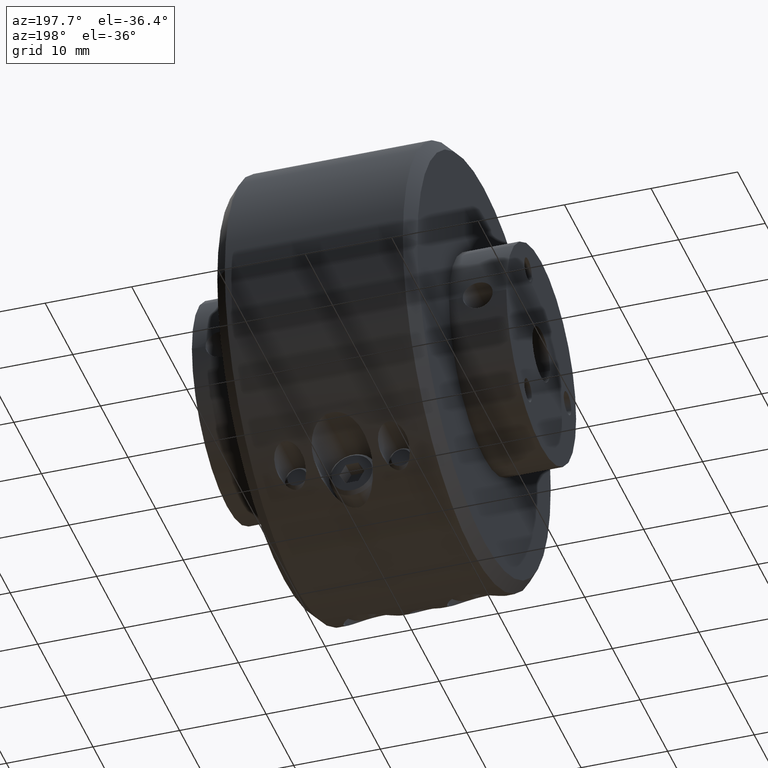
[diagram: clean part render]
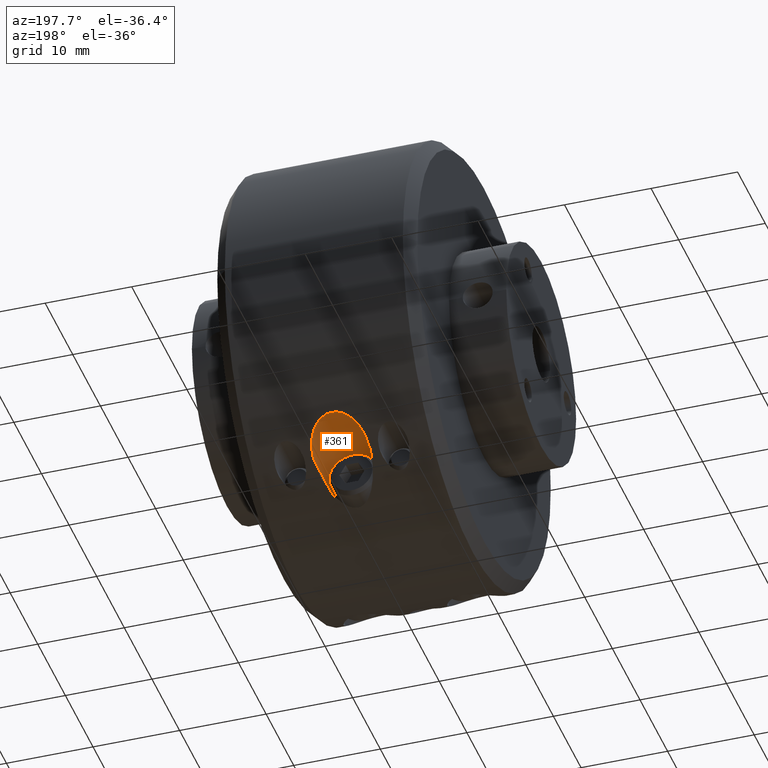
[diagram: same view with one face highlighted and labeled with its STEP entity id]
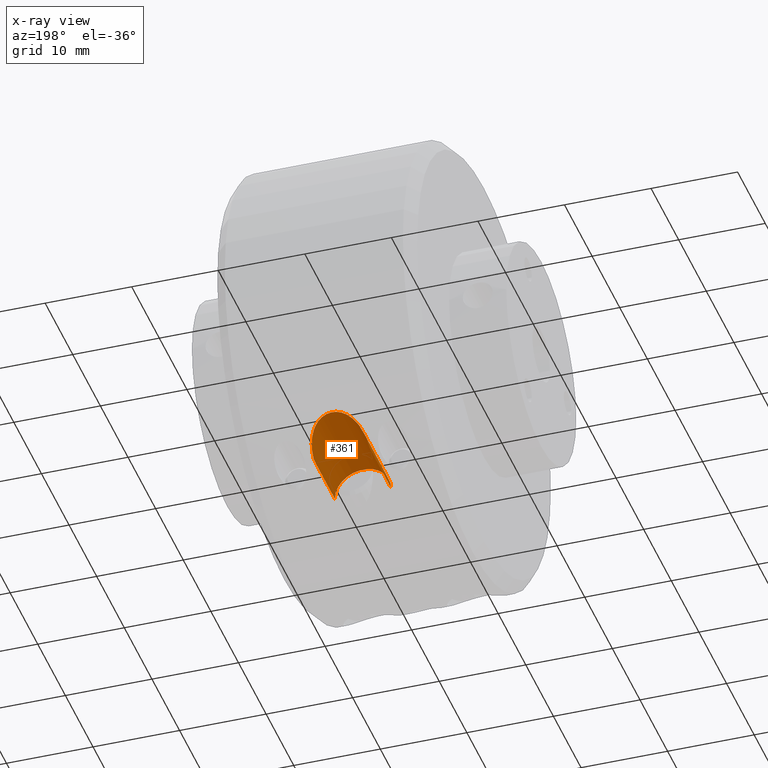
[diagram: x-ray of the same camera — body ghosted, the highlighted face saturated]
A machine part, auxiliary view. The second image highlights one B-rep face of the part: STEP entity #361.
The next image is the same camera in x-ray: the body ghosted, the highlighted face saturated — about 0% of this face is hidden behind the body in this view.
In plain terms, the highlighted cylindrical surface (edge-blend (fillet) strip) has radius 3.25 mm, axis along (0, -1, -0).
Its self-contained STEP definition (entity closure, byte-faithful):
#54 = CARTESIAN_POINT ( 'NONE',  ( -0.1279527559055124200, 0.5999999999999998700, -0.8000000000000004900 ) ) ;
#175 = AXIS2_PLACEMENT_3D ( 'NONE', #2641, #2687, #2667 ) ;
#361 = ADVANCED_FACE ( 'NONE', ( #3292 ), #3301, .F. ) ;
#392 = VERTEX_POINT ( 'NONE', #54 ) ;
#415 = DIRECTION ( 'NONE',  ( 1.000000000000000000, 0.0000000000000000000, 0.0000000000000000000 ) ) ;
#447 = DIRECTION ( 'NONE',  ( 1.024442997624098700E-016, -1.000000000000000000, -0.0000000000000000000 ) ) ;
#482 = CARTESIAN_POINT ( 'NONE',  ( 6.829619984160658000E-017, -1.000000000000000000, -0.8000000000000000400 ) ) ;
#547 = EDGE_CURVE ( 'NONE', #1616, #818, #3373, .T. ) ;
#646 = EDGE_CURVE ( 'NONE', #392, #818, #2896, .T. ) ;
#673 = EDGE_CURVE ( 'NONE', #815, #1616, #2925, .T. ) ;
#704 = EDGE_CURVE ( 'NONE', #392, #815, #2309, .T. ) ;
#783 = AXIS2_PLACEMENT_3D ( 'NONE', #482, #447, #415 ) ;
#815 = VERTEX_POINT ( 'NONE', #1684 ) ;
#818 = VERTEX_POINT ( 'NONE', #1687 ) ;
#988 = CARTESIAN_POINT ( 'NONE',  ( -0.1279527559055115800, -1.000000000000000000, -0.8000000000000000400 ) ) ;
#989 = DIRECTION ( 'NONE',  ( 1.024442997624098800E-016, -1.000000000000000000, -0.0000000000000000000 ) ) ;
#1193 = CARTESIAN_POINT ( 'NONE',  ( 0.1279527559055117200, -1.000000000000000000, -0.8000000000000000400 ) ) ;
#1194 = DIRECTION ( 'NONE',  ( 1.024442997624098800E-016, -1.000000000000000000, -0.0000000000000000000 ) ) ;
#1287 = CARTESIAN_POINT ( 'NONE',  ( -0.1279527559055124200, 0.5999999999999998700, -0.8000000000000004900 ) ) ;
#1293 = CARTESIAN_POINT ( 'NONE',  ( -0.1279527559055117500, 0.6084591341117918700, -0.7936556494161561800 ) ) ;
#1294 = CARTESIAN_POINT ( 'NONE',  ( -0.1274777134047977700, 0.6168646657414413900, -0.7871392232590346300 ) ) ;
#1295 = CARTESIAN_POINT ( 'NONE',  ( -0.1254626742871947900, 0.6332510600143380600, -0.7740176145436573600 ) ) ;
#1296 = CARTESIAN_POINT ( 'NONE',  ( -0.1239252350600733000, 0.6412729290867970100, -0.7673821578382310500 ) ) ;
#1297 = CARTESIAN_POINT ( 'NONE',  ( -0.1196029124982040700, 0.6569619823320270700, -0.7539942304277883500 ) ) ;
#1298 = CARTESIAN_POINT ( 'NONE',  ( -0.1167958562081371800, 0.6646786411002072500, -0.7471962461673757900 ) ) ;
#1299 = CARTESIAN_POINT ( 'NONE',  ( -0.1097347564450384500, 0.6794827353323910100, -0.7337595918328068100 ) ) ;
#1300 = CARTESIAN_POINT ( 'NONE',  ( -0.1055115813715489400, 0.6865324335573448300, -0.7271580402511810300 ) ) ;
#1301 = CARTESIAN_POINT ( 'NONE',  ( -0.09539128997234541700, 0.6998689612690098800, -0.7143311801121001700 ) ) ;
#1302 = CARTESIAN_POINT ( 'NONE',  ( -0.08941382878050836700, 0.7062192030295709700, -0.7080395007495835500 ) ) ;
#1303 = CARTESIAN_POINT ( 'NONE',  ( -0.07578092221844552600, 0.7175863361797481000, -0.6965165809064184400 ) ) ;
#1304 = CARTESIAN_POINT ( 'NONE',  ( -0.06811459574654046800, 0.7226497129426831000, -0.6912427464715781300 ) ) ;
#1305 = CARTESIAN_POINT ( 'NONE',  ( -0.05077724733911609400, 0.7312421452450975600, -0.6821466610510236200 ) ) ;
#1306 = CARTESIAN_POINT ( 'NONE',  ( -0.04144755856512571900, 0.7346094698825349500, -0.6784990179717113000 ) ) ;
#1307 = CARTESIAN_POINT ( 'NONE',  ( -0.02125162387213818200, 0.7392907402912025600, -0.6733952717010730500 ) ) ;
#1308 = CARTESIAN_POINT ( 'NONE',  ( -0.01075910781300230600, 0.7404969773696877800, -0.6720596898973397700 ) ) ;
#1309 = CARTESIAN_POINT ( 'NONE',  ( 0.005155987865534033200, 0.7405138019590596900, -0.6720411514020378000 ) ) ;
#1310 = CARTESIAN_POINT ( 'NONE',  ( 0.01053954612635807900, 0.7402128357558696000, -0.6723732065682588300 ) ) ;
#1311 = CARTESIAN_POINT ( 'NONE',  ( 0.02099915450367733500, 0.7390308203961633000, -0.6736721885555337900 ) ) ;
#1312 = CARTESIAN_POINT ( 'NONE',  ( 0.02612565731194936600, 0.7381528885858944500, -0.6746356387236811500 ) ) ;
#1313 = CARTESIAN_POINT ( 'NONE',  ( 0.03618006366220556700, 0.7358382126363488500, -0.6771595504664706900 ) ) ;
#1314 = CARTESIAN_POINT ( 'NONE',  ( 0.04112936013910761800, 0.7343892644168086300, -0.6787329960976445900 ) ) ;
#1315 = CARTESIAN_POINT ( 'NONE',  ( 0.05054064458332557100, 0.7310354641974067300, -0.6823439175137628900 ) ) ;
#1316 = CARTESIAN_POINT ( 'NONE',  ( 0.05504047727193198800, 0.7291246081164042300, -0.6843880080966829900 ) ) ;
#1317 = CARTESIAN_POINT ( 'NONE',  ( 0.06366237063591162500, 0.7248608152598727800, -0.6889023430706546800 ) ) ;
#1318 = CARTESIAN_POINT ( 'NONE',  ( 0.06780378313239099300, 0.7224919158988480900, -0.6913889172279428200 ) ) ;
#1319 = CARTESIAN_POINT ( 'NONE',  ( 0.07554160885430093200, 0.7174483745345602300, -0.6966211547767787700 ) ) ;
#1320 = CARTESIAN_POINT ( 'NONE',  ( 0.07916119832950063700, 0.7147654232371717400, -0.6993759012586573400 ) ) ;
#1321 = CARTESIAN_POINT ( 'NONE',  ( 0.08935885295873760600, 0.7062698721073501500, -0.7079886396126406900 ) ) ;
#1322 = CARTESIAN_POINT ( 'NONE',  ( 0.09532778706312221300, 0.6999459719359834000, -0.7142563195256159700 ) ) ;
#1323 = CARTESIAN_POINT ( 'NONE',  ( 0.1055080382884377700, 0.6865437323305819700, -0.7271479610156944600 ) ) ;
#1324 = CARTESIAN_POINT ( 'NONE',  ( 0.1097204268692513800, 0.6795012932162228800, -0.7337414730415695600 ) ) ;
#1325 = CARTESIAN_POINT ( 'NONE',  ( 0.1167432755184835300, 0.6648002563463516500, -0.7470871273857934100 ) ) ;
#1326 = CARTESIAN_POINT ( 'NONE',  ( 0.1195600482211378700, 0.6570994812748958100, -0.7538753561549661500 ) ) ;
#1327 = CARTESIAN_POINT ( 'NONE',  ( 0.1261013771982645900, 0.6334099105632677900, -0.7740949611244661900 ) ) ;
#1328 = CARTESIAN_POINT ( 'NONE',  ( 0.1279527559055115600, 0.6170420612373125300, -0.7872184540720157400 ) ) ;
#1329 = CARTESIAN_POINT ( 'NONE',  ( 0.1279527559055115600, 0.5999999999999999800, -0.8000000000000000400 ) ) ;
#1616 = VERTEX_POINT ( 'NONE', #1789 ) ;
#1684 = CARTESIAN_POINT ( 'NONE',  ( 0.1279527559055115600, 0.5999999999999999800, -0.8000000000000000400 ) ) ;
#1687 = CARTESIAN_POINT ( 'NONE',  ( -0.1279527559055117200, 0.3000000000000001000, -0.8000000000000000400 ) ) ;
#1789 = CARTESIAN_POINT ( 'NONE',  ( 0.1279527559055115800, 0.3000000000000001000, -0.8000000000000000400 ) ) ;
#2309 = B_SPLINE_CURVE_WITH_KNOTS ( 'NONE', 3,
 ( #1287, #1293, #1294, #1295, #1296, #1297, #1298, #1299, #1300, #1301, #1302, #1303, #1304, #1305, #1306, #1307, #1308, #1309, #1310, #1311, #1312, #1313, #1314, #1315, #1316, #1317, #1318, #1319, #1320, #1321, #1322, #1323, #1324, #1325, #1326, #1327, #1328, #1329 ),
 .UNSPECIFIED., .F., .F.,
 ( 4, 2, 2, 2, 2, 2, 2, 2, 2, 2, 2, 2, 2, 2, 2, 2, 2, 2, 4 ),
 ( 0.01568471295498573600, 0.01648516635960595200, 0.01728561976422616400, 0.01808607316884637900, 0.01888652657346659400, 0.01968697997808680600, 0.02048743338270702200, 0.02128788678732723700, 0.02208834019194744900, 0.02248856689425755800, 0.02288879359656766400, 0.02328902029887777000, 0.02368924700118788000, 0.02408947370349798600, 0.02448970040580809200, 0.02529015381042830700, 0.02609060721504852200, 0.02689106061966873400, 0.02849196742890916500 ),
 .UNSPECIFIED. ) ;
#2404 = ORIENTED_EDGE ( 'NONE', *, *, #547, .T. ) ;
#2429 = ORIENTED_EDGE ( 'NONE', *, *, #673, .T. ) ;
#2434 = ORIENTED_EDGE ( 'NONE', *, *, #646, .F. ) ;
#2438 = ORIENTED_EDGE ( 'NONE', *, *, #704, .T. ) ;
#2641 = CARTESIAN_POINT ( 'NONE',  ( -6.488138984952626400E-017, 0.3000000000000001000, -0.8000000000000000400 ) ) ;
#2667 = DIRECTION ( 'NONE',  ( 1.000000000000000000, 0.0000000000000000000, 0.0000000000000000000 ) ) ;
#2687 = DIRECTION ( 'NONE',  ( 1.024442997624098700E-016, -1.000000000000000000, -0.0000000000000000000 ) ) ;
#2896 = LINE ( 'NONE', #988, #2900 ) ;
#2900 = VECTOR ( 'NONE', #989, 39.37007874015748100 ) ;
#2925 = LINE ( 'NONE', #1193, #2926 ) ;
#2926 = VECTOR ( 'NONE', #1194, 39.37007874015748100 ) ;
#3292 = FACE_OUTER_BOUND ( 'NONE', #3683, .T. ) ;
#3301 = CYLINDRICAL_SURFACE ( 'NONE', #783, 0.1279527559055116700 ) ;
#3373 = CIRCLE ( 'NONE', #175, 0.1279527559055116700 ) ;
#3683 = EDGE_LOOP ( 'NONE', ( #2434, #2438, #2429, #2404 ) ) ;